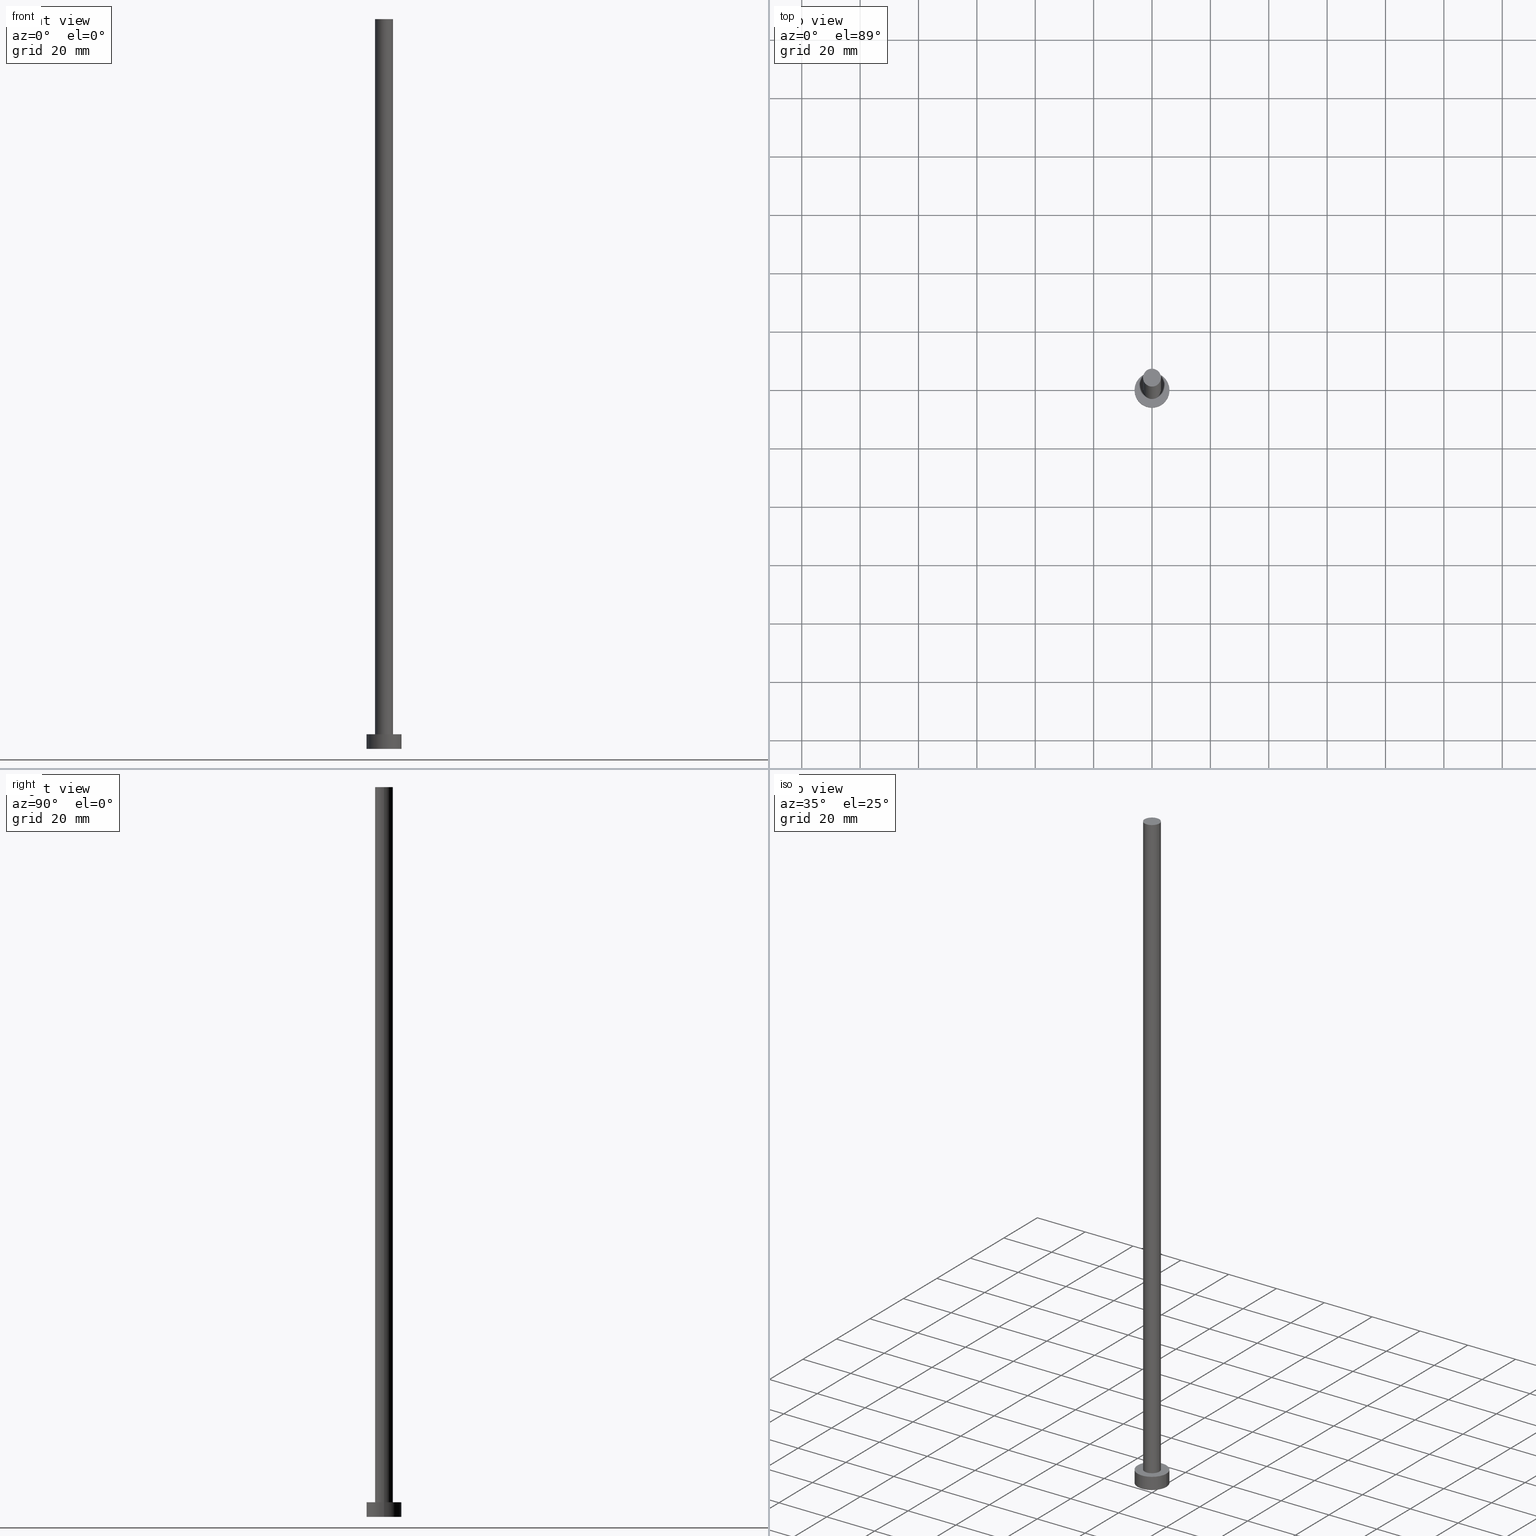
[diagram: canonical four-view strip — front | top / right | iso, engineering-drawing reading convention]
A machine part, canonical four-view strip (front | top / right | iso — engineering-drawing reading convention). The complete STEP part file that produces these views, byte-faithful:
ISO-10303-21;
HEADER;
FILE_DESCRIPTION (( 'STEP AP203' ),
    '1' );
FILE_NAME ('d407.STEP',
    '2023-05-24T12:27:29',
    ( '' ),
    ( '' ),
    'SwSTEP 2.0',
    'SolidWorks 2019',
    '' );
FILE_SCHEMA (( 'CONFIG_CONTROL_DESIGN' ));
ENDSEC;

DATA;
#1 = CC_DESIGN_PERSON_AND_ORGANIZATION_ASSIGNMENT ( #11, #157, ( #63 ) ) ;
#2 = APPROVAL_PERSON_ORGANIZATION ( #173, #171, #144 ) ;
#3 = FACE_OUTER_BOUND ( 'NONE', #122, .T. ) ;
#4 = CC_DESIGN_DATE_AND_TIME_ASSIGNMENT ( #120, #64, ( #79 ) ) ;
#5 = CALENDAR_DATE ( 2023, 24, 5 ) ;
#6 = ORIENTED_EDGE ( 'NONE', *, *, #177, .T. ) ;
#7 = DIRECTION ( 'NONE',  ( 1.000000000000000000, 0.000000000000000000, 0.000000000000000000 ) ) ;
#8 = CIRCLE ( 'NONE', #137, 6.000000000000000888 ) ;
#9 = FACE_OUTER_BOUND ( 'NONE', #27, .T. ) ;
#10 = CIRCLE ( 'NONE', #151, 3.075000000000000178 ) ;
#11 = PERSON_AND_ORGANIZATION ( #169, #200 ) ;
#12 = ORIENTED_EDGE ( 'NONE', *, *, #182, .T. ) ;
#13 = ORIENTED_EDGE ( 'NONE', *, *, #167, .F. ) ;
#14 = APPROVAL_ROLE ( '' ) ;
#15 = CARTESIAN_POINT ( 'NONE',  ( 6.000000000000000888, 7.347880794884120722E-16, 5.000000000000000000 ) ) ;
#16 = DATE_TIME_ROLE ( 'classification_date' ) ;
#17 = FACE_OUTER_BOUND ( 'NONE', #86, .T. ) ;
#18 = LINE ( 'NONE', #164, #72 ) ;
#19 = CARTESIAN_POINT ( 'NONE',  ( 0.000000000000000000, 0.000000000000000000, 5.000000000000000000 ) ) ;
#20 = EDGE_CURVE ( 'NONE', #160, #21, #189, .T. ) ;
#21 = VERTEX_POINT ( 'NONE', #62 ) ;
#22 = DIRECTION ( 'NONE',  ( 1.000000000000000000, 0.000000000000000000, 0.000000000000000000 ) ) ;
#23 = ORIENTED_EDGE ( 'NONE', *, *, #131, .F. ) ;
#24 = APPROVAL_STATUS ( 'not_yet_approved' ) ;
#25 = DIRECTION ( 'NONE',  ( 1.000000000000000000, 0.000000000000000000, 0.000000000000000000 ) ) ;
#26 = DATE_AND_TIME ( #197, #255 ) ;
#27 = EDGE_LOOP ( 'NONE', ( #99, #23 ) ) ;
#28 = CC_DESIGN_PERSON_AND_ORGANIZATION_ASSIGNMENT ( #218, #67, ( #213 ) ) ;
#29 =( GEOMETRIC_REPRESENTATION_CONTEXT ( 3 ) GLOBAL_UNCERTAINTY_ASSIGNED_CONTEXT ( ( #135 ) ) GLOBAL_UNIT_ASSIGNED_CONTEXT ( ( #85, #236, #30 ) ) REPRESENTATION_CONTEXT ( 'NONE', 'WORKASPACE' ) );
#30 =( NAMED_UNIT ( * ) SI_UNIT ( $, .STERADIAN. ) SOLID_ANGLE_UNIT ( ) );
#31 = EDGE_LOOP ( 'NONE', ( #234, #12, #219, #13 ) ) ;
#32 = PLANE ( 'NONE',  #136 ) ;
#33 = FACE_OUTER_BOUND ( 'NONE', #215, .T. ) ;
#34 = AXIS2_PLACEMENT_3D ( 'NONE', #174, #105, #107 ) ;
#35 = CARTESIAN_POINT ( 'NONE',  ( 3.075000000000000178, 3.765788907378111032E-16, 5.000000000000000000 ) ) ;
#36 = CARTESIAN_POINT ( 'NONE',  ( 0.000000000000000000, 0.000000000000000000, 0.000000000000000000 ) ) ;
#37 = AXIS2_PLACEMENT_3D ( 'NONE', #149, #55, #51 ) ;
#38 = CC_DESIGN_PERSON_AND_ORGANIZATION_ASSIGNMENT ( #161, #124, ( #96 ) ) ;
#39 = CIRCLE ( 'NONE', #37, 3.075000000000000178 ) ;
#40 = LOCAL_TIME ( 14, 27, 29.00000000000000000, #241 ) ;
#41 = ORIENTED_EDGE ( 'NONE', *, *, #233, .F. ) ;
#42 = CARTESIAN_POINT ( 'NONE',  ( 0.000000000000000000, 0.000000000000000000, 5.000000000000000000 ) ) ;
#43 = AXIS2_PLACEMENT_3D ( 'NONE', #202, #155, #7 ) ;
#44 = DIRECTION ( 'NONE',  ( 1.000000000000000000, 0.000000000000000000, -0.000000000000000000 ) ) ;
#45 = PERSON_AND_ORGANIZATION ( #169, #200 ) ;
#46 = ORIENTED_EDGE ( 'NONE', *, *, #97, .T. ) ;
#47 = CC_DESIGN_DATE_AND_TIME_ASSIGNMENT ( #199, #16, ( #63 ) ) ;
#48 = PERSON_AND_ORGANIZATION ( #169, #200 ) ;
#49 = ORIENTED_EDGE ( 'NONE', *, *, #182, .F. ) ;
#50 = APPROVAL_DATE_TIME ( #81, #171 ) ;
#51 = DIRECTION ( 'NONE',  ( 1.000000000000000000, 0.000000000000000000, 0.000000000000000000 ) ) ;
#52 = EDGE_CURVE ( 'NONE', #121, #160, #101, .T. ) ;
#53 = FACE_OUTER_BOUND ( 'NONE', #242, .T. ) ;
#54 = CARTESIAN_POINT ( 'NONE',  ( 6.000000000000000888, 7.347880794884120722E-16, 0.000000000000000000 ) ) ;
#55 = DIRECTION ( 'NONE',  ( 0.000000000000000000, 0.000000000000000000, 1.000000000000000000 ) ) ;
#56 = CIRCLE ( 'NONE', #238, 6.000000000000000888 ) ;
#57 = CC_DESIGN_APPROVAL ( #134, ( #96 ) ) ;
#58 = PRODUCT_DEFINITION_SHAPE ( 'NONE', 'NONE',  #79 ) ;
#59 = CC_DESIGN_APPROVAL ( #171, ( #79 ) ) ;
#60 = CYLINDRICAL_SURFACE ( 'NONE', #34, 3.075000000000000178 ) ;
#61 = DIRECTION ( 'NONE',  ( 0.000000000000000000, 0.000000000000000000, 1.000000000000000000 ) ) ;
#62 = CARTESIAN_POINT ( 'NONE',  ( -3.075000000000000178, 0.000000000000000000, 5.000000000000000000 ) ) ;
#63 = SECURITY_CLASSIFICATION ( '', '', #178 ) ;
#64 = DATE_TIME_ROLE ( 'creation_date' ) ;
#65 = CALENDAR_DATE ( 2023, 24, 5 ) ;
#66 = ORIENTED_EDGE ( 'NONE', *, *, #52, .T. ) ;
#67 = PERSON_AND_ORGANIZATION_ROLE ( 'design_owner' ) ;
#68 = AXIS2_PLACEMENT_3D ( 'NONE', #73, #111, #185 ) ;
#69 = FACE_OUTER_BOUND ( 'NONE', #31, .T. ) ;
#70 = LINE ( 'NONE', #90, #98 ) ;
#71 = CARTESIAN_POINT ( 'NONE',  ( 0.000000000000000000, 0.000000000000000000, 5.000000000000000000 ) ) ;
#72 = VECTOR ( 'NONE', #252, 1000.000000000000000 ) ;
#73 = CARTESIAN_POINT ( 'NONE',  ( 0.000000000000000000, 0.000000000000000000, 250.0000000000000000 ) ) ;
#74 = ADVANCED_FACE ( 'NONE', ( #3 ), #60, .T. ) ;
#75 = APPROVAL_PERSON_ORGANIZATION ( #45, #134, #14 ) ;
#76 = AXIS2_PLACEMENT_3D ( 'NONE', #42, #123, #25 ) ;
#77 = CC_DESIGN_PERSON_AND_ORGANIZATION_ASSIGNMENT ( #48, #239, ( #79 ) ) ;
#78 = ORIENTED_EDGE ( 'NONE', *, *, #229, .F. ) ;
#79 = PRODUCT_DEFINITION ( 'NEZN�M�', '', #96, #214 ) ;
#80 = CLOSED_SHELL ( 'NONE', ( #147, #188, #126, #170, #94, #74, #152 ) ) ;
#81 = DATE_AND_TIME ( #222, #166 ) ;
#82 = ORIENTED_EDGE ( 'NONE', *, *, #167, .T. ) ;
#83 = LOCAL_TIME ( 14, 27, 29.00000000000000000, #224 ) ;
#84 = MANIFOLD_SOLID_BREP ( 'P�idat vysunut�m3', #80 ) ;
#85 =( LENGTH_UNIT ( ) NAMED_UNIT ( * ) SI_UNIT ( .MILLI., .METRE. ) );
#86 = EDGE_LOOP ( 'NONE', ( #46, #6 ) ) ;
#87 = CARTESIAN_POINT ( 'NONE',  ( 0.000000000000000000, 0.000000000000000000, 0.000000000000000000 ) ) ;
#88 = APPLICATION_CONTEXT ( 'configuration controlled 3d designs of mechanical parts and assemblies' ) ;
#89 = COORDINATED_UNIVERSAL_TIME_OFFSET ( 1, 0, .AHEAD. ) ;
#90 = CARTESIAN_POINT ( 'NONE',  ( -6.000000000000000888, 0.000000000000000000, 5.000000000000000000 ) ) ;
#91 = COORDINATED_UNIVERSAL_TIME_OFFSET ( 1, 0, .AHEAD. ) ;
#92 = DIRECTION ( 'NONE',  ( 1.000000000000000000, 0.000000000000000000, 0.000000000000000000 ) ) ;
#93 = DIRECTION ( 'NONE',  ( 0.000000000000000000, 0.000000000000000000, 1.000000000000000000 ) ) ;
#94 = ADVANCED_FACE ( 'NONE', ( #9 ), #179, .F. ) ;
#95 = CYLINDRICAL_SURFACE ( 'NONE', #193, 6.000000000000000888 ) ;
#96 = PRODUCT_DEFINITION_FORMATION_WITH_SPECIFIED_SOURCE ( 'LIBOVOLN�', '', #213, .NOT_KNOWN. ) ;
#97 = EDGE_CURVE ( 'NONE', #158, #221, #228, .T. ) ;
#98 = VECTOR ( 'NONE', #133, 1000.000000000000000 ) ;
#99 = ORIENTED_EDGE ( 'NONE', *, *, #235, .F. ) ;
#100 = APPLICATION_PROTOCOL_DEFINITION ( 'international standard', 'config_control_design', 1994, #88 ) ;
#101 = LINE ( 'NONE', #103, #223 ) ;
#102 = COORDINATED_UNIVERSAL_TIME_OFFSET ( 1, 0, .AHEAD. ) ;
#103 = CARTESIAN_POINT ( 'NONE',  ( 3.075000000000000178, 3.765788907378111032E-16, 250.0000000000000000 ) ) ;
#104 = APPROVAL_DATE_TIME ( #26, #134 ) ;
#105 = DIRECTION ( 'NONE',  ( -0.000000000000000000, -0.000000000000000000, -1.000000000000000000 ) ) ;
#106 = CIRCLE ( 'NONE', #43, 3.075000000000000178 ) ;
#107 = DIRECTION ( 'NONE',  ( -1.000000000000000000, 0.000000000000000000, 0.000000000000000000 ) ) ;
#108 = APPLICATION_PROTOCOL_DEFINITION ( 'international standard', 'config_control_design', 1994, #116 ) ;
#109 = CARTESIAN_POINT ( 'NONE',  ( 0.000000000000000000, 0.000000000000000000, 5.000000000000000000 ) ) ;
#110 = DATE_AND_TIME ( #204, #217 ) ;
#111 = DIRECTION ( 'NONE',  ( 0.000000000000000000, 0.000000000000000000, 1.000000000000000000 ) ) ;
#112 = CC_DESIGN_SECURITY_CLASSIFICATION ( #63, ( #96 ) ) ;
#113 = DIRECTION ( 'NONE',  ( -1.000000000000000000, 0.000000000000000000, 0.000000000000000000 ) ) ;
#114 = APPROVAL_DATE_TIME ( #110, #118 ) ;
#115 = DIRECTION ( 'NONE',  ( 1.000000000000000000, 0.000000000000000000, 0.000000000000000000 ) ) ;
#116 = APPLICATION_CONTEXT ( 'configuration controlled 3d designs of mechanical parts and assemblies' ) ;
#117 = CIRCLE ( 'NONE', #212, 6.000000000000000888 ) ;
#118 = APPROVAL ( #190, 'NEUR�EN�' ) ;
#119 = ORIENTED_EDGE ( 'NONE', *, *, #235, .T. ) ;
#120 = DATE_AND_TIME ( #5, #83 ) ;
#121 = VERTEX_POINT ( 'NONE', #145 ) ;
#122 = EDGE_LOOP ( 'NONE', ( #237, #216, #196, #138 ) ) ;
#123 = DIRECTION ( 'NONE',  ( 0.000000000000000000, 0.000000000000000000, 1.000000000000000000 ) ) ;
#124 = PERSON_AND_ORGANIZATION_ROLE ( 'creator' ) ;
#125 = EDGE_LOOP ( 'NONE', ( #41, #172 ) ) ;
#126 = ADVANCED_FACE ( 'NONE', ( #53 ), #231, .T. ) ;
#127 = CARTESIAN_POINT ( 'NONE',  ( 0.000000000000000000, 0.000000000000000000, 0.000000000000000000 ) ) ;
#128 = CARTESIAN_POINT ( 'NONE',  ( 0.000000000000000000, 0.000000000000000000, 250.0000000000000000 ) ) ;
#129 = APPROVAL_ROLE ( '' ) ;
#130 = CYLINDRICAL_SURFACE ( 'NONE', #210, 3.075000000000000178 ) ;
#131 = EDGE_CURVE ( 'NONE', #192, #176, #8, .T. ) ;
#132 = CARTESIAN_POINT ( 'NONE',  ( 6.000000000000000888, 7.347880794884120722E-16, 5.000000000000000000 ) ) ;
#133 = DIRECTION ( 'NONE',  ( -0.000000000000000000, -0.000000000000000000, -1.000000000000000000 ) ) ;
#134 = APPROVAL ( #181, 'NEUR�EN�' ) ;
#135 = UNCERTAINTY_MEASURE_WITH_UNIT (LENGTH_MEASURE( 1.000000000000000082E-05 ), #85, 'distance_accuracy_value', 'NONE');
#136 = AXIS2_PLACEMENT_3D ( 'NONE', #109, #209, #163 ) ;
#137 = AXIS2_PLACEMENT_3D ( 'NONE', #36, #93, #92 ) ;
#138 = ORIENTED_EDGE ( 'NONE', *, *, #233, .T. ) ;
#139 = DIRECTION ( 'NONE',  ( 0.000000000000000000, 0.000000000000000000, 1.000000000000000000 ) ) ;
#140 = ORIENTED_EDGE ( 'NONE', *, *, #142, .F. ) ;
#141 = ORIENTED_EDGE ( 'NONE', *, *, #20, .T. ) ;
#142 = EDGE_CURVE ( 'NONE', #121, #195, #39, .T. ) ;
#143 = AXIS2_PLACEMENT_3D ( 'NONE', #205, #225, #150 ) ;
#144 = APPROVAL_ROLE ( '' ) ;
#145 = CARTESIAN_POINT ( 'NONE',  ( 3.075000000000000178, 3.765788907378111032E-16, 250.0000000000000000 ) ) ;
#146 = DIRECTION ( 'NONE',  ( -0.000000000000000000, -0.000000000000000000, -1.000000000000000000 ) ) ;
#147 = ADVANCED_FACE ( 'NONE', ( #249 ), #130, .T. ) ;
#148 = DIRECTION ( 'NONE',  ( 1.000000000000000000, 0.000000000000000000, 0.000000000000000000 ) ) ;
#149 = CARTESIAN_POINT ( 'NONE',  ( 0.000000000000000000, 0.000000000000000000, 250.0000000000000000 ) ) ;
#150 = DIRECTION ( 'NONE',  ( -1.000000000000000000, 0.000000000000000000, 0.000000000000000000 ) ) ;
#151 = AXIS2_PLACEMENT_3D ( 'NONE', #71, #253, #175 ) ;
#152 = ADVANCED_FACE ( 'NONE', ( #33 ), #162, .T. ) ;
#153 = ORIENTED_EDGE ( 'NONE', *, *, #142, .T. ) ;
#154 = EDGE_LOOP ( 'NONE', ( #140, #66, #141, #78 ) ) ;
#155 = DIRECTION ( 'NONE',  ( 0.000000000000000000, 0.000000000000000000, 1.000000000000000000 ) ) ;
#156 = CARTESIAN_POINT ( 'NONE',  ( 0.000000000000000000, 0.000000000000000000, 5.000000000000000000 ) ) ;
#157 = PERSON_AND_ORGANIZATION_ROLE ( 'classification_officer' ) ;
#158 = VERTEX_POINT ( 'NONE', #203 ) ;
#159 = DIRECTION ( 'NONE',  ( 0.000000000000000000, 0.000000000000000000, 1.000000000000000000 ) ) ;
#160 = VERTEX_POINT ( 'NONE', #35 ) ;
#161 = PERSON_AND_ORGANIZATION ( #169, #200 ) ;
#162 = PLANE ( 'NONE',  #68 ) ;
#163 = DIRECTION ( 'NONE',  ( 1.000000000000000000, 0.000000000000000000, -0.000000000000000000 ) ) ;
#164 = CARTESIAN_POINT ( 'NONE',  ( -3.075000000000000178, 0.000000000000000000, 250.0000000000000000 ) ) ;
#165 = CARTESIAN_POINT ( 'NONE',  ( -3.075000000000000178, 0.000000000000000000, 250.0000000000000000 ) ) ;
#166 = LOCAL_TIME ( 14, 27, 29.00000000000000000, #102 ) ;
#167 = EDGE_CURVE ( 'NONE', #158, #176, #70, .T. ) ;
#168 = PERSON_AND_ORGANIZATION ( #169, #200 ) ;
#169 = PERSON ( 'NEUR�EN�', 'NEUR�EN�', 'NEUR�EN�', ('NEUR�EN�'), ('NEUR�EN�'), ('NEUR�EN�') ) ;
#170 = ADVANCED_FACE ( 'NONE', ( #187, #17 ), #32, .T. ) ;
#171 = APPROVAL ( #24, 'NEUR�EN�' ) ;
#172 = ORIENTED_EDGE ( 'NONE', *, *, #20, .F. ) ;
#173 = PERSON_AND_ORGANIZATION ( #169, #200 ) ;
#174 = CARTESIAN_POINT ( 'NONE',  ( 0.000000000000000000, 0.000000000000000000, 250.0000000000000000 ) ) ;
#175 = DIRECTION ( 'NONE',  ( 1.000000000000000000, 0.000000000000000000, 0.000000000000000000 ) ) ;
#176 = VERTEX_POINT ( 'NONE', #250 ) ;
#177 = EDGE_CURVE ( 'NONE', #221, #158, #56, .T. ) ;
#178 = SECURITY_CLASSIFICATION_LEVEL ( 'unclassified' ) ;
#179 = PLANE ( 'NONE',  #246 ) ;
#180 = CARTESIAN_POINT ( 'NONE',  ( 0.000000000000000000, 0.000000000000000000, 0.000000000000000000 ) ) ;
#181 = APPROVAL_STATUS ( 'not_yet_approved' ) ;
#182 = EDGE_CURVE ( 'NONE', #221, #192, #186, .T. ) ;
#183 = DIRECTION ( 'NONE',  ( 0.000000000000000000, 0.000000000000000000, 1.000000000000000000 ) ) ;
#184 = AXIS2_PLACEMENT_3D ( 'NONE', #87, #159, #243 ) ;
#185 = DIRECTION ( 'NONE',  ( 1.000000000000000000, 0.000000000000000000, -0.000000000000000000 ) ) ;
#186 = LINE ( 'NONE', #15, #247 ) ;
#187 = FACE_BOUND ( 'NONE', #125, .T. ) ;
#188 = ADVANCED_FACE ( 'NONE', ( #69 ), #95, .T. ) ;
#189 = CIRCLE ( 'NONE', #76, 3.075000000000000178 ) ;
#190 = APPROVAL_STATUS ( 'not_yet_approved' ) ;
#191 = PRODUCT_RELATED_PRODUCT_CATEGORY ( 'detail', '', ( #213 ) ) ;
#192 = VERTEX_POINT ( 'NONE', #54 ) ;
#193 = AXIS2_PLACEMENT_3D ( 'NONE', #226, #227, #113 ) ;
#194 = PERSON_AND_ORGANIZATION_ROLE ( 'design_supplier' ) ;
#195 = VERTEX_POINT ( 'NONE', #165 ) ;
#196 = ORIENTED_EDGE ( 'NONE', *, *, #229, .T. ) ;
#197 = CALENDAR_DATE ( 2023, 24, 5 ) ;
#198 = ORIENTED_EDGE ( 'NONE', *, *, #251, .T. ) ;
#199 = DATE_AND_TIME ( #65, #40 ) ;
#200 = ORGANIZATION ( 'NEUR�EN�', 'NEUR�EN�', '' ) ;
#201 = ORIENTED_EDGE ( 'NONE', *, *, #97, .F. ) ;
#202 = CARTESIAN_POINT ( 'NONE',  ( 0.000000000000000000, 0.000000000000000000, 250.0000000000000000 ) ) ;
#203 = CARTESIAN_POINT ( 'NONE',  ( -6.000000000000000888, 0.000000000000000000, 5.000000000000000000 ) ) ;
#204 = CALENDAR_DATE ( 2023, 24, 5 ) ;
#205 = CARTESIAN_POINT ( 'NONE',  ( 0.000000000000000000, 0.000000000000000000, 5.000000000000000000 ) ) ;
#206 = AXIS2_PLACEMENT_3D ( 'NONE', #156, #240, #115 ) ;
#207 = APPROVAL_PERSON_ORGANIZATION ( #168, #118, #129 ) ;
#208 = DIRECTION ( 'NONE',  ( -1.000000000000000000, 0.000000000000000000, 0.000000000000000000 ) ) ;
#209 = DIRECTION ( 'NONE',  ( 0.000000000000000000, 0.000000000000000000, 1.000000000000000000 ) ) ;
#210 = AXIS2_PLACEMENT_3D ( 'NONE', #128, #232, #208 ) ;
#211 = SHAPE_DEFINITION_REPRESENTATION ( #58, #254 ) ;
#212 = AXIS2_PLACEMENT_3D ( 'NONE', #127, #61, #22 ) ;
#213 = PRODUCT ( 'd407', 'd407', '', ( #220 ) ) ;
#214 = DESIGN_CONTEXT ( 'detailed design', #116, 'design' ) ;
#215 = EDGE_LOOP ( 'NONE', ( #198, #153 ) ) ;
#216 = ORIENTED_EDGE ( 'NONE', *, *, #251, .F. ) ;
#217 = LOCAL_TIME ( 14, 27, 29.00000000000000000, #91 ) ;
#218 = PERSON_AND_ORGANIZATION ( #169, #200 ) ;
#219 = ORIENTED_EDGE ( 'NONE', *, *, #131, .T. ) ;
#220 = MECHANICAL_CONTEXT ( 'NONE', #88, 'mechanical' ) ;
#221 = VERTEX_POINT ( 'NONE', #132 ) ;
#222 = CALENDAR_DATE ( 2023, 24, 5 ) ;
#223 = VECTOR ( 'NONE', #244, 1000.000000000000000 ) ;
#224 = COORDINATED_UNIVERSAL_TIME_OFFSET ( 1, 0, .AHEAD. ) ;
#225 = DIRECTION ( 'NONE',  ( -0.000000000000000000, -0.000000000000000000, -1.000000000000000000 ) ) ;
#226 = CARTESIAN_POINT ( 'NONE',  ( 0.000000000000000000, 0.000000000000000000, 5.000000000000000000 ) ) ;
#227 = DIRECTION ( 'NONE',  ( -0.000000000000000000, -0.000000000000000000, -1.000000000000000000 ) ) ;
#228 = CIRCLE ( 'NONE', #206, 6.000000000000000888 ) ;
#229 = EDGE_CURVE ( 'NONE', #195, #21, #18, .T. ) ;
#230 = CC_DESIGN_APPROVAL ( #118, ( #63 ) ) ;
#231 = CYLINDRICAL_SURFACE ( 'NONE', #143, 6.000000000000000888 ) ;
#232 = DIRECTION ( 'NONE',  ( -0.000000000000000000, -0.000000000000000000, -1.000000000000000000 ) ) ;
#233 = EDGE_CURVE ( 'NONE', #21, #160, #10, .T. ) ;
#234 = ORIENTED_EDGE ( 'NONE', *, *, #177, .F. ) ;
#235 = EDGE_CURVE ( 'NONE', #176, #192, #117, .T. ) ;
#236 =( NAMED_UNIT ( * ) PLANE_ANGLE_UNIT ( ) SI_UNIT ( $, .RADIAN. ) );
#237 = ORIENTED_EDGE ( 'NONE', *, *, #52, .F. ) ;
#238 = AXIS2_PLACEMENT_3D ( 'NONE', #19, #183, #148 ) ;
#239 = PERSON_AND_ORGANIZATION_ROLE ( 'creator' ) ;
#240 = DIRECTION ( 'NONE',  ( 0.000000000000000000, 0.000000000000000000, 1.000000000000000000 ) ) ;
#241 = COORDINATED_UNIVERSAL_TIME_OFFSET ( 1, 0, .AHEAD. ) ;
#242 = EDGE_LOOP ( 'NONE', ( #49, #201, #82, #119 ) ) ;
#243 = DIRECTION ( 'NONE',  ( 1.000000000000000000, 0.000000000000000000, 0.000000000000000000 ) ) ;
#244 = DIRECTION ( 'NONE',  ( -0.000000000000000000, -0.000000000000000000, -1.000000000000000000 ) ) ;
#245 = CC_DESIGN_PERSON_AND_ORGANIZATION_ASSIGNMENT ( #248, #194, ( #96 ) ) ;
#246 = AXIS2_PLACEMENT_3D ( 'NONE', #180, #139, #44 ) ;
#247 = VECTOR ( 'NONE', #146, 1000.000000000000000 ) ;
#248 = PERSON_AND_ORGANIZATION ( #169, #200 ) ;
#249 = FACE_OUTER_BOUND ( 'NONE', #154, .T. ) ;
#250 = CARTESIAN_POINT ( 'NONE',  ( -6.000000000000000888, 0.000000000000000000, 0.000000000000000000 ) ) ;
#251 = EDGE_CURVE ( 'NONE', #195, #121, #106, .T. ) ;
#252 = DIRECTION ( 'NONE',  ( -0.000000000000000000, -0.000000000000000000, -1.000000000000000000 ) ) ;
#253 = DIRECTION ( 'NONE',  ( 0.000000000000000000, 0.000000000000000000, 1.000000000000000000 ) ) ;
#254 = ADVANCED_BREP_SHAPE_REPRESENTATION ( 'd407', ( #84, #184 ), #29 ) ;
#255 = LOCAL_TIME ( 14, 27, 29.00000000000000000, #89 ) ;
ENDSEC;
END-ISO-10303-21;
